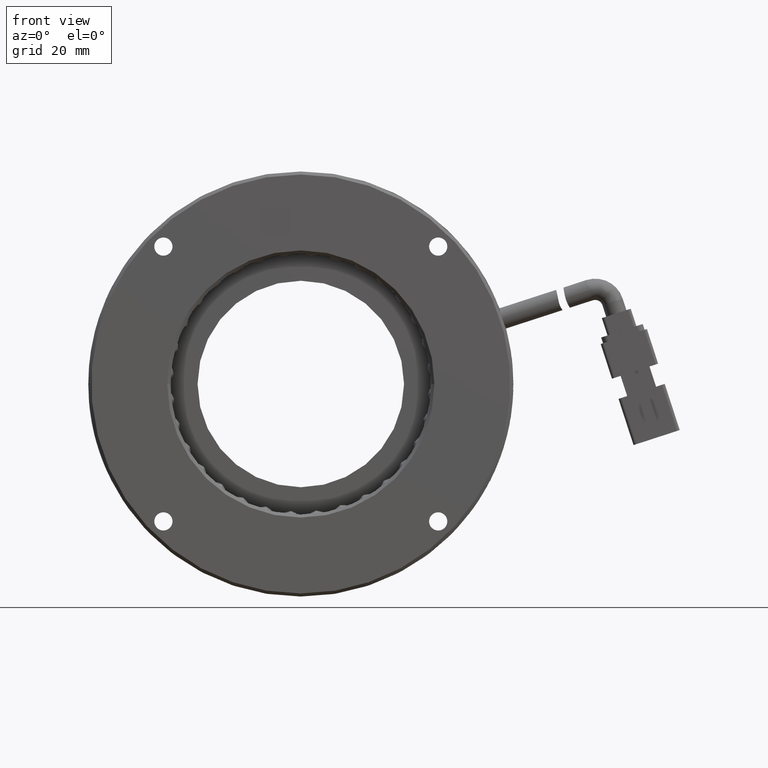
[diagram: clean part render]
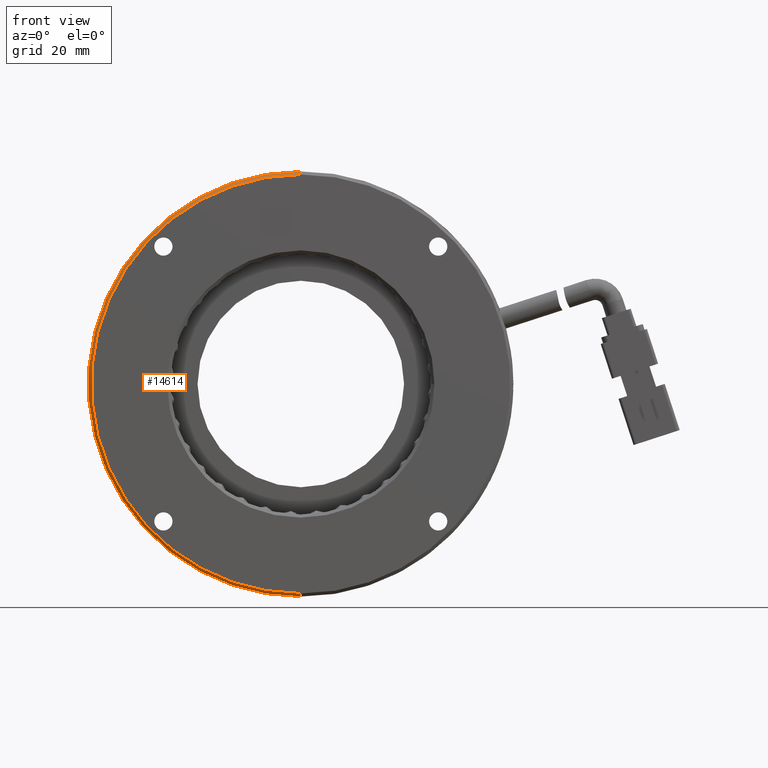
[diagram: same view with one face highlighted and labeled with its STEP entity id]
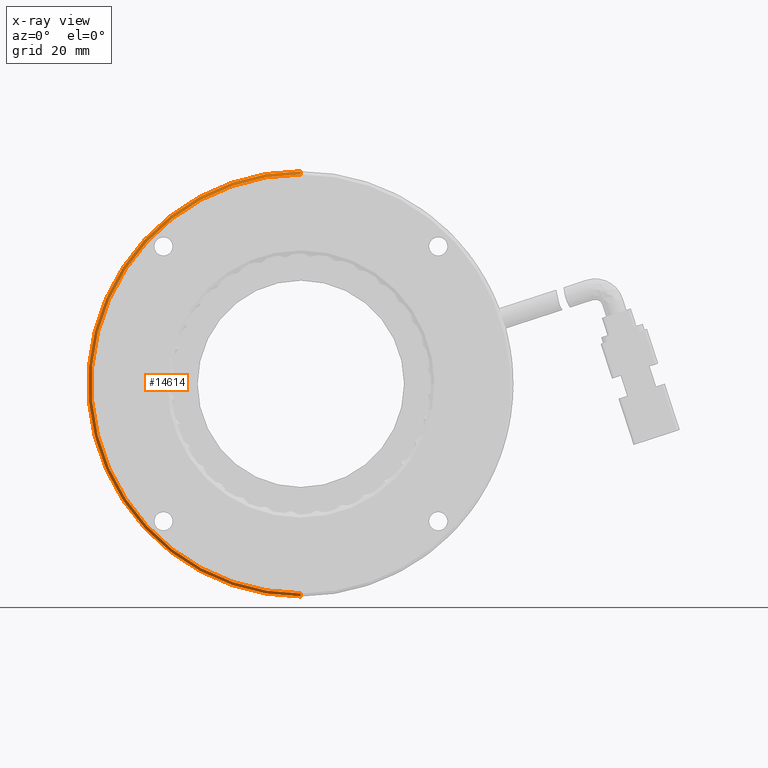
[diagram: x-ray of the same camera — body ghosted, the highlighted face saturated]
A machine part, front view. The second image highlights one B-rep face of the part: STEP entity #14614.
The next image is the same camera in x-ray: the body ghosted, the highlighted face saturated — about 0% of this face is hidden behind the body in this view.
In plain terms, the highlighted conical surface has half-angle 45 deg.
Its self-contained STEP definition (entity closure, byte-faithful):
#2803 = EDGE_CURVE ( 'NONE', #39921, #32676, #39011, .T. ) ;
#4979 = CARTESIAN_POINT ( 'NONE',  ( -5.709292144904565300, 4.760202915404216000, -34.99999999999999300 ) ) ;
#6978 = ORIENTED_EDGE ( 'NONE', *, *, #32417, .F. ) ;
#8275 = ORIENTED_EDGE ( 'NONE', *, *, #29630, .T. ) ;
#8746 = VECTOR ( 'NONE', #38707, 1000.000000000000000 ) ;
#10284 = CIRCLE ( 'NONE', #16880, 34.99999999999999300 ) ;
#11858 = VERTEX_POINT ( 'NONE', #16048 ) ;
#12180 = DIRECTION ( 'NONE',  ( 0.0000000000000000000, 0.0000000000000000000, 1.000000000000000000 ) ) ;
#12325 = ORIENTED_EDGE ( 'NONE', *, *, #2803, .T. ) ;
#12665 = DIRECTION ( 'NONE',  ( 0.0000000000000000000, 0.0000000000000000000, 1.000000000000000000 ) ) ;
#13461 = DIRECTION ( 'NONE',  ( -0.0000000000000000000, 1.000000000000000000, 0.0000000000000000000 ) ) ;
#13557 = CARTESIAN_POINT ( 'NONE',  ( -5.709292144904560800, 4.260202915404256900, -34.50000000000004300 ) ) ;
#13741 = CARTESIAN_POINT ( 'NONE',  ( -5.709292144904565300, 4.260202915404256900, 0.0000000000000000000 ) ) ;
#14614 = ADVANCED_FACE ( 'NONE', ( #27235 ), #15014, .T. ) ;
#15014 = CONICAL_SURFACE ( 'NONE', #19438, 35.00000000000000000, 0.7853981633974482800 ) ;
#16015 = DIRECTION ( 'NONE',  ( -0.0000000000000000000, -1.000000000000000000, -0.0000000000000000000 ) ) ;
#16048 = CARTESIAN_POINT ( 'NONE',  ( -5.709292144904560800, 4.760202915404216000, 34.99999999999999300 ) ) ;
#16657 = CARTESIAN_POINT ( 'NONE',  ( -5.709292144904560800, 4.760202915404216000, -35.00000000000000000 ) ) ;
#16880 = AXIS2_PLACEMENT_3D ( 'NONE', #34698, #16015, #37805 ) ;
#17211 = EDGE_CURVE ( 'NONE', #11858, #36683, #10284, .T. ) ;
#19438 = AXIS2_PLACEMENT_3D ( 'NONE', #36955, #39917, #12180 ) ;
#21261 = VECTOR ( 'NONE', #36550, 1000.000000000000000 ) ;
#25085 = AXIS2_PLACEMENT_3D ( 'NONE', #13741, #13461, #12665 ) ;
#27235 = FACE_OUTER_BOUND ( 'NONE', #32603, .T. ) ;
#27790 = ORIENTED_EDGE ( 'NONE', *, *, #17211, .T. ) ;
#29532 = LINE ( 'NONE', #33438, #21261 ) ;
#29630 = EDGE_CURVE ( 'NONE', #32676, #11858, #29532, .T. ) ;
#32417 = EDGE_CURVE ( 'NONE', #39921, #36683, #33591, .T. ) ;
#32603 = EDGE_LOOP ( 'NONE', ( #6978, #12325, #8275, #27790 ) ) ;
#32676 = VERTEX_POINT ( 'NONE', #36381 ) ;
#33438 = CARTESIAN_POINT ( 'NONE',  ( -5.709292144904565300, 4.760202915404216000, 35.00000000000000000 ) ) ;
#33591 = LINE ( 'NONE', #16657, #8746 ) ;
#34698 = CARTESIAN_POINT ( 'NONE',  ( -5.709292144904565300, 4.760202915404216000, 0.0000000000000000000 ) ) ;
#36381 = CARTESIAN_POINT ( 'NONE',  ( -5.709292144904565300, 4.260202915404256900, 34.50000000000004300 ) ) ;
#36550 = DIRECTION ( 'NONE',  ( 0.0000000000000000000, 0.7071067811865475700, 0.7071067811865474600 ) ) ;
#36683 = VERTEX_POINT ( 'NONE', #4979 ) ;
#36955 = CARTESIAN_POINT ( 'NONE',  ( -5.709292144904565300, 4.760202915404216000, 0.0000000000000000000 ) ) ;
#37805 = DIRECTION ( 'NONE',  ( 0.0000000000000000000, 0.0000000000000000000, 1.000000000000000000 ) ) ;
#38707 = DIRECTION ( 'NONE',  ( 8.659560562354931600E-017, 0.7071067811865475700, -0.7071067811865474600 ) ) ;
#39011 = CIRCLE ( 'NONE', #25085, 34.50000000000004300 ) ;
#39917 = DIRECTION ( 'NONE',  ( -0.0000000000000000000, 1.000000000000000000, 0.0000000000000000000 ) ) ;
#39921 = VERTEX_POINT ( 'NONE', #13557 ) ;